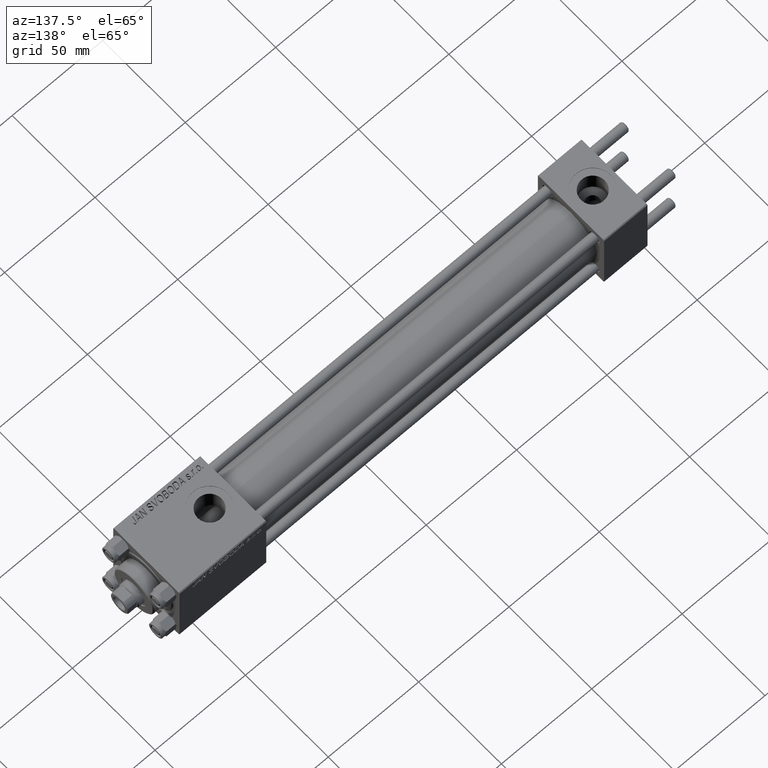
[diagram: clean part render]
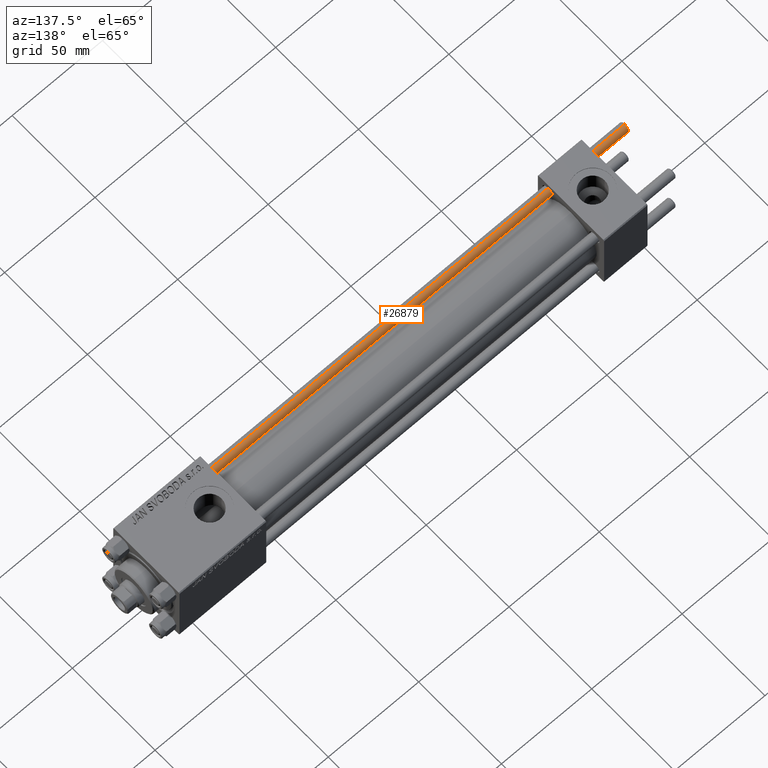
[diagram: same view with one face highlighted and labeled with its STEP entity id]
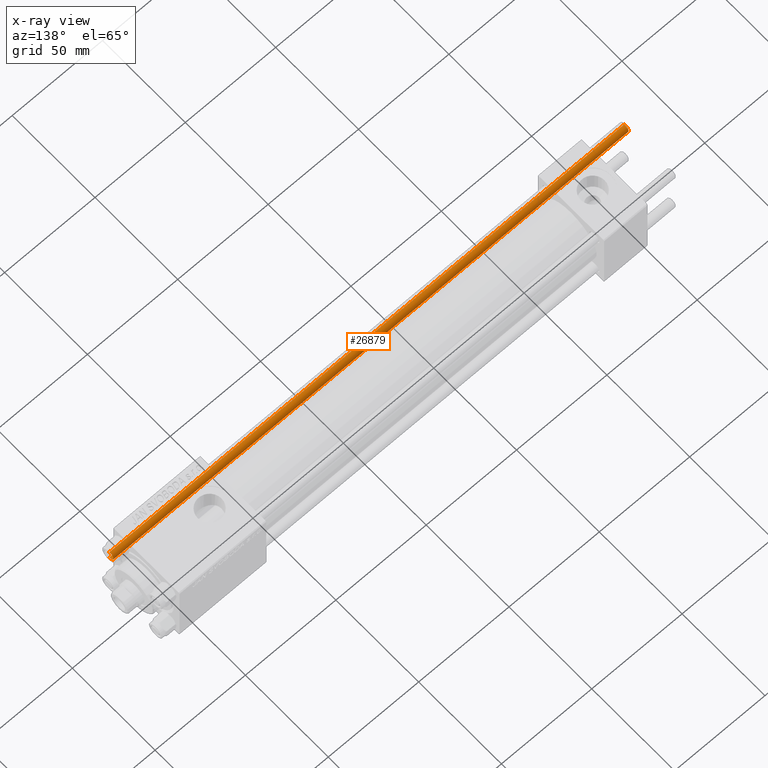
[diagram: x-ray of the same camera — body ghosted, the highlighted face saturated]
A machine part, auxiliary view. The second image highlights one B-rep face of the part: STEP entity #26879.
The next image is the same camera in x-ray: the body ghosted, the highlighted face saturated — about 0% of this face is hidden behind the body in this view.
In plain terms, the highlighted cylindrical surface (edge-blend (fillet) strip) has radius 2.5 mm, axis along (1, -0, 0).
Its self-contained STEP definition (entity closure, byte-faithful):
#360 = AXIS2_PLACEMENT_3D ( 'NONE', #47092, #12596, #19915 ) ;
#621 = VERTEX_POINT ( 'NONE', #40967 ) ;
#2359 = DIRECTION ( 'NONE',  ( -0.000000000000000000, -0.000000000000000000, -1.000000000000000000 ) ) ;
#5148 = CARTESIAN_POINT ( 'NONE',  ( -2.500000000000000000, 0.000000000000000000, 285.4999999999999432 ) ) ;
#5395 = LINE ( 'NONE', #35871, #42263 ) ;
#6945 = EDGE_LOOP ( 'NONE', ( #15098, #10191, #32440, #33040 ) ) ;
#6980 = FACE_OUTER_BOUND ( 'NONE', #6945, .T. ) ;
#9122 = AXIS2_PLACEMENT_3D ( 'NONE', #10758, #17794, #33146 ) ;
#10191 = ORIENTED_EDGE ( 'NONE', *, *, #29939, .T. ) ;
#10758 = CARTESIAN_POINT ( 'NONE',  ( 0.000000000000000000, 0.000000000000000000, 286.0000000000000000 ) ) ;
#11036 = DIRECTION ( 'NONE',  ( -0.000000000000000000, -0.000000000000000000, 1.000000000000000000 ) ) ;
#12596 = DIRECTION ( 'NONE',  ( 0.000000000000000000, 0.000000000000000000, -1.000000000000000000 ) ) ;
#14285 = CYLINDRICAL_SURFACE ( 'NONE', #9122, 2.500000000000000000 ) ;
#15098 = ORIENTED_EDGE ( 'NONE', *, *, #32225, .F. ) ;
#16468 = CIRCLE ( 'NONE', #360, 2.500000000000000000 ) ;
#17794 = DIRECTION ( 'NONE',  ( -0.000000000000000000, -0.000000000000000000, -1.000000000000000000 ) ) ;
#19023 = CARTESIAN_POINT ( 'NONE',  ( -2.500000000000000000, 0.000000000000000000, 286.0000000000000000 ) ) ;
#19915 = DIRECTION ( 'NONE',  ( 1.000000000000000000, 0.000000000000000000, 0.000000000000000000 ) ) ;
#21150 = CIRCLE ( 'NONE', #42084, 2.500000000000000000 ) ;
#21430 = VERTEX_POINT ( 'NONE', #5148 ) ;
#22123 = CARTESIAN_POINT ( 'NONE',  ( 0.000000000000000000, 0.000000000000000000, 0.4999999999999449329 ) ) ;
#23008 = EDGE_CURVE ( 'NONE', #30827, #23522, #21150, .T. ) ;
#23359 = EDGE_CURVE ( 'NONE', #21430, #30827, #30347, .T. ) ;
#23522 = VERTEX_POINT ( 'NONE', #28290 ) ;
#26879 = ADVANCED_FACE ( 'NONE', ( #6980 ), #14285, .T. ) ;
#28290 = CARTESIAN_POINT ( 'NONE',  ( 2.500000000000000000, 3.061616997868383141E-16, 0.4999999999999449329 ) ) ;
#29939 = EDGE_CURVE ( 'NONE', #621, #21430, #16468, .T. ) ;
#30347 = LINE ( 'NONE', #19023, #45318 ) ;
#30827 = VERTEX_POINT ( 'NONE', #34748 ) ;
#32225 = EDGE_CURVE ( 'NONE', #621, #23522, #5395, .T. ) ;
#32440 = ORIENTED_EDGE ( 'NONE', *, *, #23359, .T. ) ;
#33040 = ORIENTED_EDGE ( 'NONE', *, *, #23008, .T. ) ;
#33146 = DIRECTION ( 'NONE',  ( -1.000000000000000000, 0.000000000000000000, 0.000000000000000000 ) ) ;
#34378 = DIRECTION ( 'NONE',  ( -0.000000000000000000, -0.000000000000000000, -1.000000000000000000 ) ) ;
#34748 = CARTESIAN_POINT ( 'NONE',  ( -2.500000000000000000, 0.000000000000000000, 0.4999999999999449329 ) ) ;
#35871 = CARTESIAN_POINT ( 'NONE',  ( 2.500000000000000000, 3.061616997868383141E-16, 286.0000000000000000 ) ) ;
#37464 = DIRECTION ( 'NONE',  ( 1.000000000000000000, 0.000000000000000000, 0.000000000000000000 ) ) ;
#40967 = CARTESIAN_POINT ( 'NONE',  ( 2.500000000000000000, 3.061616997868383141E-16, 285.4999999999999432 ) ) ;
#42084 = AXIS2_PLACEMENT_3D ( 'NONE', #22123, #11036, #37464 ) ;
#42263 = VECTOR ( 'NONE', #2359, 1000.000000000000000 ) ;
#45318 = VECTOR ( 'NONE', #34378, 1000.000000000000000 ) ;
#47092 = CARTESIAN_POINT ( 'NONE',  ( 0.000000000000000000, 0.000000000000000000, 285.4999999999999432 ) ) ;